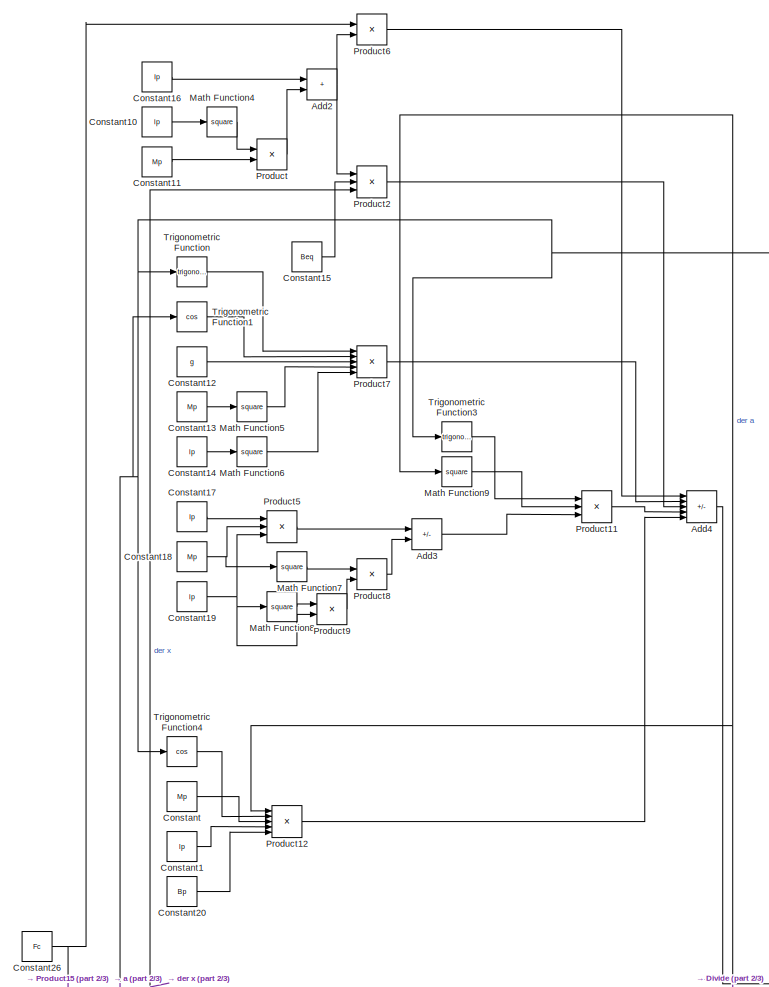
[diagram: root canvas - part 1/3, top center region]
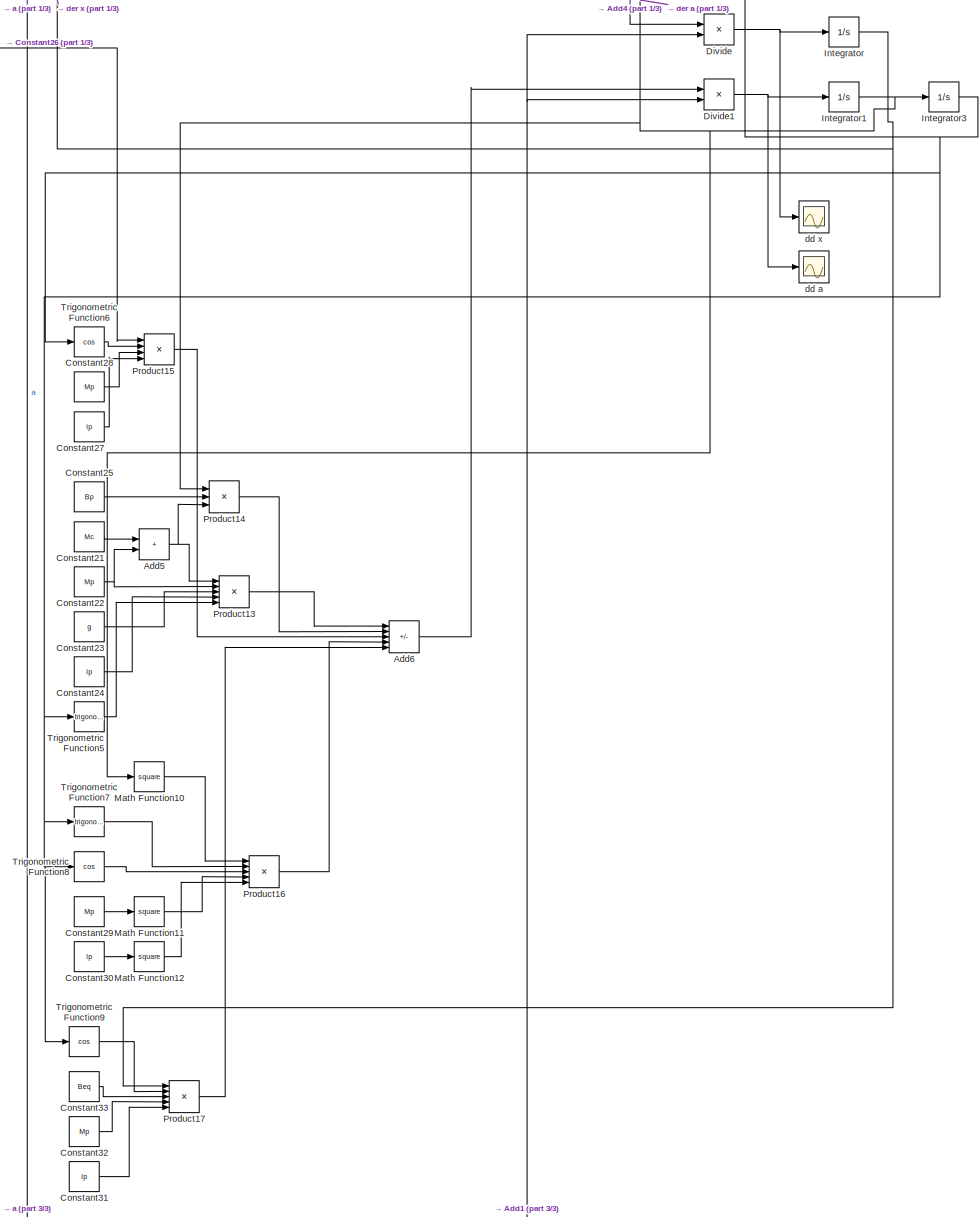
[diagram: root canvas - part 2/3, full width, middle band]
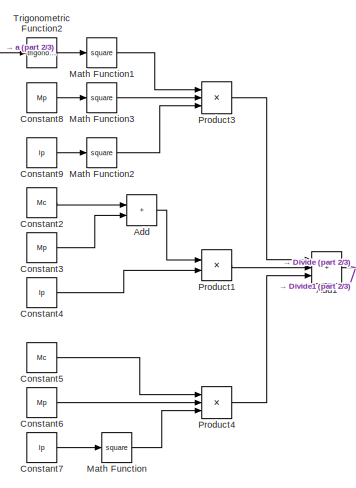
[diagram: root canvas - part 3/3, bottom left region]
MODEL slx_ccb33fb829bf
KIND model
CONFIG AbsTol = auto
CONFIG EnableMultiTasking = off
CONFIG FixedStep = auto
CONFIG MaxStep = auto
CONFIG MinStep = auto
CONFIG RelTol = 1e-3
CONFIG SampleTimeConstraint = Unconstrained
CONFIG SolverName = VariableStepAuto
CONFIG StartTime = 0.0
CONFIG StopTime = 10.0
BLOCK [Sum] Add
  IconShape = rectangular
BLOCK [Sum] Add1
  IconShape = rectangular
  Inputs = +++
BLOCK [Sum] Add2
  IconShape = rectangular
BLOCK [Sum] Add3
  IconShape = rectangular
  Inputs = +-
BLOCK [Sum] Add4
  IconShape = rectangular
  Inputs = ++---
BLOCK [Sum] Add5
  IconShape = rectangular
BLOCK [Sum] Add6
  IconShape = rectangular
  Inputs = +-+--
BLOCK [Constant] Constant
  Value = Mp
BLOCK [Constant] Constant1
  Value = lp
BLOCK [Constant] Constant10
  Value = lp
BLOCK [Constant] Constant11
  Value = Mp
BLOCK [Constant] Constant12
  Value = g
BLOCK [Constant] Constant13
  Value = Mp
BLOCK [Constant] Constant14
  Value = lp
BLOCK [Constant] Constant15
  Value = Beq
BLOCK [Constant] Constant16
  Value = Ip
BLOCK [Constant] Constant17
  Value = Ip
BLOCK [Constant] Constant18
  Value = Mp
BLOCK [Constant] Constant19
  Value = lp
BLOCK [Constant] Constant2
  Value = Mc
BLOCK [Constant] Constant20
  Value = Bp
BLOCK [Constant] Constant21
  Value = Mc
BLOCK [Constant] Constant22
  Value = Mp
BLOCK [Constant] Constant23
  Value = g
BLOCK [Constant] Constant24
  Value = lp
BLOCK [Constant] Constant25
  Value = Bp
BLOCK [Constant] Constant26
  Value = Fc
BLOCK [Constant] Constant27
  Value = lp
BLOCK [Constant] Constant28
  Value = Mp
BLOCK [Constant] Constant29
  Value = Mp
BLOCK [Constant] Constant3
  Value = Mp
BLOCK [Constant] Constant30
  Value = lp
BLOCK [Constant] Constant31
  Value = lp
BLOCK [Constant] Constant32
  Value = Mp
BLOCK [Constant] Constant33
  Value = Beq
BLOCK [Constant] Constant4
  Value = Ip
BLOCK [Constant] Constant5
  Value = Mc
BLOCK [Constant] Constant6
  Value = Mp
BLOCK [Constant] Constant7
  Value = lp
BLOCK [Constant] Constant8
  Value = Mp
BLOCK [Constant] Constant9
  Value = lp
BLOCK [Product] Divide
  Inputs = */
BLOCK [Product] Divide1
  Inputs = */
BLOCK [Integrator] Integrator
BLOCK [Integrator] Integrator1
BLOCK [Integrator] Integrator3
BLOCK [Math] Math Function
  Operator = square
BLOCK [Math] Math Function1
  Operator = square
BLOCK [Math] Math Function10
  Operator = square
BLOCK [Math] Math Function11
  Operator = square
BLOCK [Math] Math Function12
  Operator = square
BLOCK [Math] Math Function2
  Operator = square
BLOCK [Math] Math Function3
  Operator = square
BLOCK [Math] Math Function4
  Operator = square
BLOCK [Math] Math Function5
  Operator = square
BLOCK [Math] Math Function6
  Operator = square
BLOCK [Math] Math Function7
  Operator = square
BLOCK [Math] Math Function8
  Operator = square
BLOCK [Math] Math Function9
  Operator = square
BLOCK [Product] Product
BLOCK [Product] Product1
BLOCK [Product] Product11
  Inputs = 3
BLOCK [Product] Product12
  Inputs = 5
BLOCK [Product] Product13
  Inputs = 5
BLOCK [Product] Product14
  Inputs = 3
BLOCK [Product] Product15
  Inputs = 4
BLOCK [Product] Product16
  Inputs = 5
BLOCK [Product] Product17
  Inputs = 5
BLOCK [Product] Product2
  Inputs = 3
BLOCK [Product] Product3
  Inputs = 3
BLOCK [Product] Product4
  Inputs = 3
BLOCK [Product] Product5
  Inputs = 3
BLOCK [Product] Product6
BLOCK [Product] Product7
  Inputs = 5
BLOCK [Product] Product8
BLOCK [Product] Product9
BLOCK [Trigonometry] Trigonometric Function
BLOCK [Trigonometry] Trigonometric Function1
  Operator = cos
BLOCK [Trigonometry] Trigonometric Function2
BLOCK [Trigonometry] Trigonometric Function3
BLOCK [Trigonometry] Trigonometric Function4
  Operator = cos
BLOCK [Trigonometry] Trigonometric Function5
BLOCK [Trigonometry] Trigonometric Function6
  Operator = cos
BLOCK [Trigonometry] Trigonometric Function7
BLOCK [Trigonometry] Trigonometric Function8
  Operator = cos
BLOCK [Trigonometry] Trigonometric Function9
  Operator = cos
BLOCK [Scope] dd a 
  ActiveDisplayYMaximum = 1.0308976029129711
  ActiveDisplayYMinimum = -1.0281643534245157
  DataLoggingVariableName = ScopeData1
  Floating = off
  GraphicalSettings = {"Style":{"BackgroundColor":[0.12941176470588237,0.12941176470588237,0.12941176470588237],"AxesColor":[0.07058823529411765,0.07058823529411765,0.07058823529411765],"LabelsColor":[0.8509803921568627,0.8509803921568627,0.8509803921568627],"PreserveColors":false,"Visible":[true],"LineStyle":["-"],"LineWidth":[1.5],"BarWidth":[0.9],"LineColor":["auto"],"LineFaceAlpha":[1],"LineEdgeAlpha":[1],"Marker":...<+1963ch>
  MultipleDisplayCache = [{"MaxYLimMag":1,"MaxYLimReal":1.0308976029129711,"MinYLimMag":0,"MinYLimReal":-1.0281643534245157,"PlotAsMagnitudePhase":false,"ShowGrid":true,"ShowLegend":false,"Title":"%<SignalLabel>","YLabel":""}]
  NumInputPorts = 1
  ScopeFrameLocation = window
  Visible = on
  WasSavedAsWebScope = on
  WindowPosition = [440.000000,270.000000,560.000000,420.000000,]
BLOCK [Scope] dd x
  ActiveDisplayYMaximum = 21.314181231157825
  ActiveDisplayYMinimum = -21.720179733836122
  Floating = off
  GraphicalSettings = {"Style":{"BackgroundColor":[0.12941176470588237,0.12941176470588237,0.12941176470588237],"AxesColor":[0.07058823529411765,0.07058823529411765,0.07058823529411765],"LabelsColor":[0.8509803921568627,0.8509803921568627,0.8509803921568627],"PreserveColors":false,"Visible":[true],"LineStyle":["-"],"LineWidth":[1.5],"BarWidth":[0.9],"LineColor":["auto"],"LineFaceAlpha":[1],"LineEdgeAlpha":[1],"Marker":...<+1894ch>
  MultipleDisplayCache = [{"MaxYLimMag":21.720179733836122,"MaxYLimReal":21.314181231157825,"MinYLimMag":0,"MinYLimReal":-21.720179733836122,"PlotAsMagnitudePhase":false,"ShowGrid":true,"ShowLegend":false,"Title":"%<SignalLabel>","YLabel":""}]
  NumInputPorts = 1
  ScopeFrameLocation = window
  WasSavedAsWebScope = on
  WindowPosition = [440.000000,270.000000,560.000000,420.000000,]
NET Add1:1 -> Divide1:2, Divide:2
NET Add2:1 -> Product2:1, Product6:2
LINE Add3:1 -> Product11:3
LINE Add4:1 -> Divide:1
NET Add5:1 -> Product13:1, Product14:3
LINE Add6:1 -> Divide1:1
LINE Add:1 -> Product1:1
LINE Constant10:1 -> Math Function4:1
LINE Constant11:1 -> Product:2
LINE Constant12:1 -> Product7:3
LINE Constant13:1 -> Math Function5:1
LINE Constant14:1 -> Math Function6:1
LINE Constant15:1 -> Product2:2
LINE Constant16:1 -> Add2:1
LINE Constant17:1 -> Product5:1
NET Constant18:1 -> Math Function7:1, Product5:2
NET Constant19:1 -> Math Function8:1, Product5:3, Product9:2
LINE Constant1:1 -> Product12:4
LINE Constant20:1 -> Product12:5
LINE Constant21:1 -> Add5:1
NET Constant22:1 -> Add5:2, Product13:2
LINE Constant23:1 -> Product13:3
LINE Constant24:1 -> Product13:4
LINE Constant25:1 -> Product14:2
NET Constant26:1 -> Product15:1, Product6:1
LINE Constant27:1 -> Product15:4
LINE Constant28:1 -> Product15:3
LINE Constant29:1 -> Math Function11:1
LINE Constant2:1 -> Add:1
LINE Constant30:1 -> Math Function12:1
LINE Constant31:1 -> Product17:5
LINE Constant32:1 -> Product17:4
LINE Constant33:1 -> Product17:3
LINE Constant3:1 -> Add:2
LINE Constant4:1 -> Product1:2
LINE Constant5:1 -> Product4:1
LINE Constant6:1 -> Product4:2
LINE Constant7:1 -> Math Function:1
LINE Constant8:1 -> Math Function3:1
LINE Constant9:1 -> Math Function2:1
LINE Constant:1 -> Product12:3
NET Divide1:1 -> Integrator1:1, dd a :1
NET Divide:1 -> Integrator:1, dd x:1
NET Integrator1:1 -> Integrator3:1, Math Function10:1, Math Function9:1, Product12:1, Product14:1
NET Integrator3:1 -> Trigonometric Function1:1, Trigonometric Function2:1, Trigonometric Function3:1, Trigonometric Function4:1, Trigonometric Function5:1, Trigonometric Function6:1, Trigonometric Function7:1, Trigonometric Function8:1, Trigonometric Function9:1, Trigonometric Function:1
NET Integrator:1 -> Product17:1, Product2:3
LINE Math Function10:1 -> Product16:1
LINE Math Function11:1 -> Product16:4
LINE Math Function12:1 -> Product16:5
LINE Math Function1:1 -> Product3:1
LINE Math Function2:1 -> Product3:3
LINE Math Function3:1 -> Product3:2
LINE Math Function4:1 -> Product:1
LINE Math Function5:1 -> Product7:4
LINE Math Function6:1 -> Product7:5
LINE Math Function7:1 -> Product8:1
LINE Math Function8:1 -> Product9:1
LINE Math Function9:1 -> Product11:2
LINE Math Function:1 -> Product4:3
LINE Product11:1 -> Add4:4
LINE Product12:1 -> Add4:5
LINE Product13:1 -> Add6:1
LINE Product14:1 -> Add6:2
LINE Product15:1 -> Add6:3
LINE Product16:1 -> Add6:4
LINE Product17:1 -> Add6:5
LINE Product1:1 -> Add1:2
LINE Product2:1 -> Add4:3
LINE Product3:1 -> Add1:1
LINE Product4:1 -> Add1:3
LINE Product5:1 -> Add3:1
LINE Product6:1 -> Add4:1
LINE Product7:1 -> Add4:2
LINE Product8:1 -> Add3:2
LINE Product9:1 -> Product8:2
LINE Product:1 -> Add2:2
LINE Trigonometric Function1:1 -> Product7:2
LINE Trigonometric Function2:1 -> Math Function1:1
LINE Trigonometric Function3:1 -> Product11:1
LINE Trigonometric Function4:1 -> Product12:2
LINE Trigonometric Function5:1 -> Product13:5
LINE Trigonometric Function6:1 -> Product15:2
LINE Trigonometric Function7:1 -> Product16:2
LINE Trigonometric Function8:1 -> Product16:3
LINE Trigonometric Function9:1 -> Product17:2
LINE Trigonometric Function:1 -> Product7:1
note: NET lines group one-source signal fan-out (src -> all destinations, sorted); 1:1 wires keep LINE
